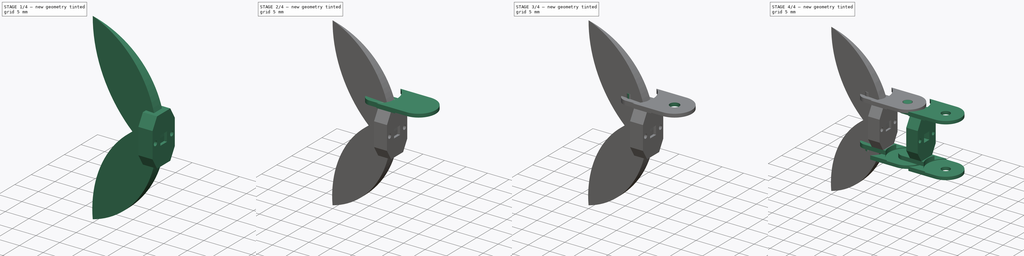
[diagram: build sequence overview — one tinted view per stage of 4, left to right]
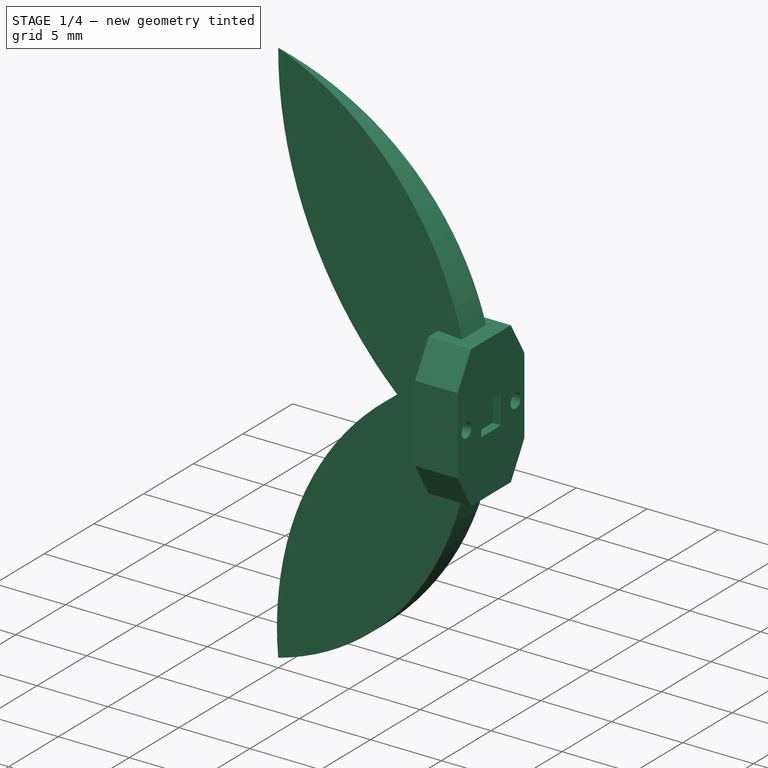
[diagram: stage 1 of 4 — iso view after this stage's code; geometry added in this stage tinted green]
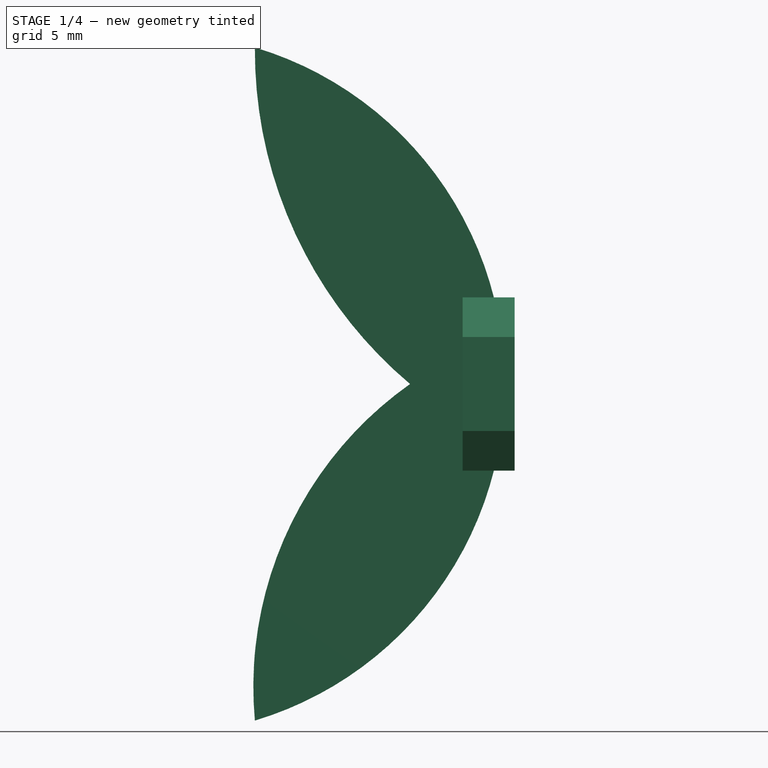
[diagram: stage 1 of 4 — front view after this stage's code; geometry added in this stage tinted green]
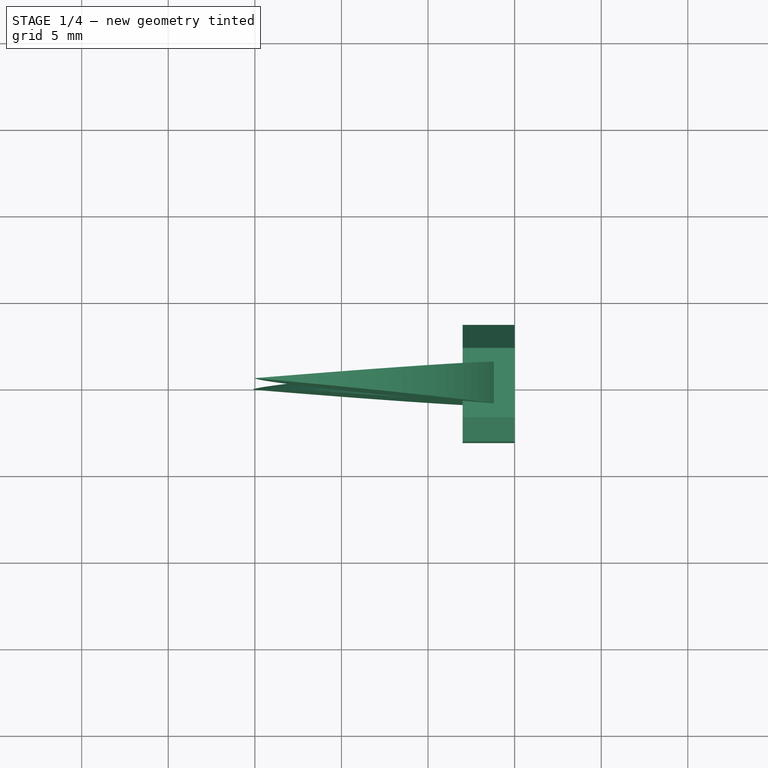
[diagram: stage 1 of 4 — top view after this stage's code; geometry added in this stage tinted green]
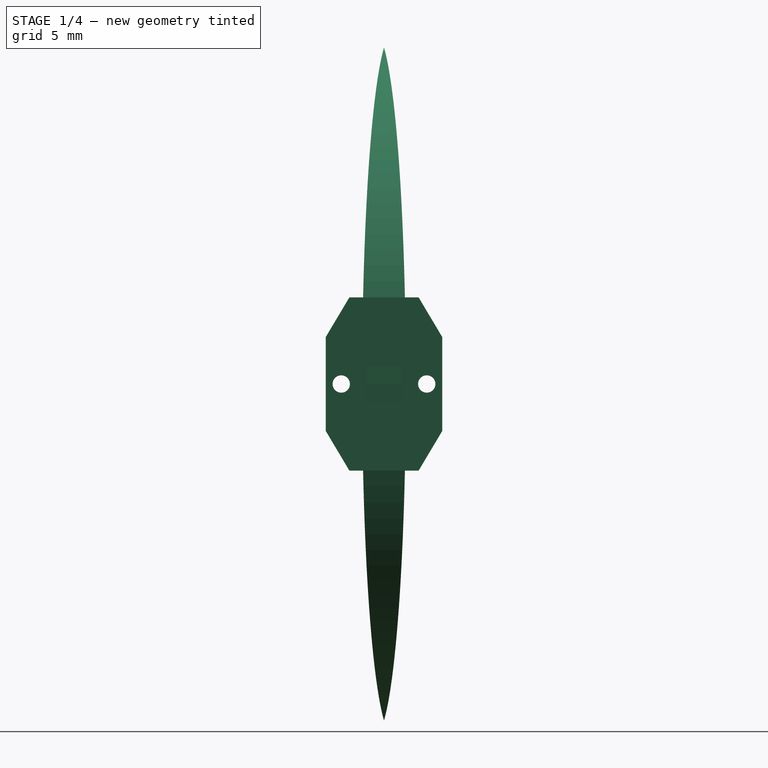
[diagram: stage 1 of 4 — right view after this stage's code; geometry added in this stage tinted green]
FCSTD DOCUMENT  (FreeCAD 0.16RUnknown)
Label: ChainV2
License: All rights reserved
LicenseURL: http://en.wikipedia.org/wiki/All_rights_reserved
objects: Sketcher::SketchObject×8, Part::Extrusion×3, Part::FeaturePython×3, PartDesign::Pad×2, PartDesign::Pocket×2, Spreadsheet::Sheet×1, Part::Mirroring×1, Part::Cut×1, Part::Revolution×1, Part::Fuse×1, App::DocumentObjectGroup×1
note: 26 computed .brp shape members not serialized (recipe doc carries the construction recipe); baked Part::Feature solids carry a one-line shape summary decoded from their .brp

FEATURE [Sketcher::SketchObject] Sketch001  label="big"
  Placement = pos=(0,0,6) rot=(0,0,1;0rad)
  Support = -> Extrude [Face6]
  expr: Constraints[3] = data.Lx / 2
  expr: Constraints[6] = data.Lx / 2
  expr: Constraints[2] = data.Ly / 2
  sketch-geometry (4):
    g0: ArcOfCircle CenterX=5 CenterY=0 CenterZ=0 NormalX=0 NormalY=0 NormalZ=1 Radius=4 StartAngle=4.71238 EndAngle=7.85399
    g1: ArcOfCircle CenterX=-5 CenterY=0 CenterZ=0 NormalX=0 NormalY=0 NormalZ=1 Radius=5 StartAngle=5.35589 EndAngle=7.21048
    g2: LineSegment StartX=-2 StartY=4 StartZ=0 EndX=4.99998 EndY=4 EndZ=0
    g3: LineSegment StartX=-2 StartY=-4 StartZ=0 EndX=4.99998 EndY=-4 EndZ=0
  constraints (14):
    c: PointOnObject(g0,g-1)
    c: Symmetric(g0,g0,g-1)
    c: Radius(g0) = 4
    c: DistanceX(g-1,g0) = 5
    c: PointOnObject(g1,g-1)
    c: Symmetric(g1,g1,g-1)
    c: DistanceX(g1,g-1) = 5
    c: PointOnObject(g-1,g1)
    c: Coincident(g2,g0)
    c: Coincident(g3,g0)
    c: Coincident(g2,g1)
    c: Coincident(g1,g3)
    c: Parallel(g2,g3)
    c: Tangent(g0,g2)
FEATURE [Sketcher::SketchObject] Sketch005  label="inside"
  Placement = pos=(0,0,0) rot=(0.57735,0.57735,0.57735;2.0944rad)
  expr: Constraints[17] = data.ly / 2
  expr: Constraints[13] = data.Lz / 2
  expr: Constraints[12] = data.Lz / 2
  sketch-geometry (8):
    g0: LineSegment StartX=-2 StartY=5 StartZ=0 EndX=2 EndY=5 EndZ=0
    g1: LineSegment StartX=2 StartY=5 StartZ=0 EndX=3.36402 EndY=2.71073 EndZ=0
    g2: LineSegment StartX=3.36402 StartY=2.71073 StartZ=0 EndX=3.36402 EndY=-2.71073 EndZ=0
    g3: LineSegment StartX=3.36402 StartY=-2.71073 StartZ=0 EndX=2 EndY=-5 EndZ=0
    g4: LineSegment StartX=2 StartY=-5 StartZ=0 EndX=-2 EndY=-5 EndZ=0
    g5: LineSegment StartX=-2 StartY=-5 StartZ=0 EndX=-3.36402 EndY=-2.71073 EndZ=0
    g6: LineSegment StartX=-3.36402 StartY=-2.71073 StartZ=0 EndX=-3.36402 EndY=2.71073 EndZ=0
    g7: LineSegment StartX=-3.36402 StartY=2.71073 StartZ=0 EndX=-2 EndY=5 EndZ=0
  constraints (18):
    c: Symmetric(g0,g0,g-2)
    c: Symmetric(g4,g3,g-2)
    c: Coincident(g6,g7)
    c: Coincident(g5,g4)
    c: Coincident(g5,g6)
    c: Coincident(g0,g7)
    c: Coincident(g0,g1)
    c: Coincident(g1,g2)
    c: Coincident(g2,g3)
    c: Coincident(g3,g4)
    c: Symmetric(g5,g2,g-2)
    c: Symmetric(g6,g1,g-2)
    c: DistanceY(g-1,g0) = 5
    c: DistanceY(g3,g-1) = 5
    c: Parallel(g2,g6)
    c: Symmetric(g1,g2,g-1)
    c: Symmetric(g0,g3,g-1)
    c: DistanceX(g-1,g0) = 2
FEATURE [Sketcher::SketchObject] Sketch006  label="controls"
  Placement = pos=(0,0,0) rot=(0.57735,0.57735,0.57735;2.0944rad)
  expr: Constraints[13] = data.wire
  expr: Constraints[11] = data.bone
  expr: Constraints[16] = data.wire
  expr: Constraints[10] = data.bone
  sketch-geometry (6):
    g0: LineSegment StartX=-1 StartY=1 StartZ=0 EndX=1 EndY=1 EndZ=0
    g1: LineSegment StartX=1 StartY=1 StartZ=0 EndX=1 EndY=-1 EndZ=0
    g2: LineSegment StartX=1 StartY=-1 StartZ=0 EndX=-1 EndY=-1 EndZ=0
    g3: LineSegment StartX=-1 StartY=-1 StartZ=0 EndX=-1 EndY=1 EndZ=0
    g4: Circle CenterX=2.46826 CenterY=0 CenterZ=0 NormalX=0 NormalY=0 NormalZ=1 Radius=0.5
    g5: Circle CenterX=-2.46826 CenterY=0 CenterZ=0 NormalX=0 NormalY=0 NormalZ=1 Radius=0.5
  constraints (17):
    c: Coincident(g0,g1)
    c: Coincident(g1,g2)
    c: Coincident(g2,g3)
    c: Coincident(g3,g0)
    c: Horizontal(g0)
    c: Horizontal(g2)
    c: Vertical(g1)
    c: Vertical(g3)
    c: Symmetric(g0,g2,g-1)
    c: Symmetric(g0,g0,g-2)
    c: DistanceX(g0,g0) = 2
    c: DistanceY(g1,g0) = 2
    c: PointOnObject(g4,g-1)
    c: Radius(g4) = 0.5
    c: PointOnObject(g5,g-1)
    c: Symmetric(g5,g4,g-2)
    c: Radius(g5) = 0.5
FEATURE [Part::Extrusion] Extrude001  label="Controls"
  Base = -> Sketch006
  Dir = (10,0,0)
  Placement = pos=(-5,0,0) rot=(0,0,1;0rad)
  Solid = true
  expr: Placement.Base.x = -data.Lx / 2
  expr: Dir.x = data.Lx
FEATURE [Part::Extrusion] Extrude002  label="Inside"
  Base = -> Sketch005
  Dir = (-3,0,0)
  Solid = true
  expr: Dir.x = -data.core
FEATURE [Part::Cut] Cut  label="Core"
  Base = -> Extrude002
  Tool = -> Extrude001
FEATURE [Sketcher::SketchObject] Sketch007  label="TailProfile"
  Placement = pos=(0,0,0) rot=(-1,0,0;4.71239rad)
  sketch-geometry (3):
    g0: ArcOfCircle CenterX=25.164 CenterY=19.282 CenterZ=0 NormalX=0 NormalY=0 NormalZ=1 Radius=25.1645 StartAngle=3.1355 EndAngle=4.01456
    g1: ArcOfCircle CenterX=-5.8005 CenterY=0 CenterZ=0 NormalX=0 NormalY=0 NormalZ=1 Radius=20.2824 StartAngle=5.00243 EndAngle=7.56394
    g2: ArcOfCircle CenterX=21.2945 CenterY=-17.4912 CenterZ=0 NormalX=0 NormalY=0 NormalZ=1 Radius=21.3831 StartAngle=2.18368 EndAngle=3.23263
  constraints (7):
    c: PointOnObject(g1,g-1)
    c: Symmetric(g1,g1,g-1)
    c: PointOnObject(g1,g-2)
    c: Coincident(g1,g0)
    c: PointOnObject(g0,g-1)
    c: Coincident(g2,g0)
    c: Coincident(g2,g1)
FEATURE [Part::Revolution] Revolve
  Angle = 10
  Axis = (0,0,1)
  Base = (0,0,0)
  Placement = pos=(-15,0,0) rot=(0,0,-1;0.087266rad)
  Solid = true
  Source = -> Sketch007
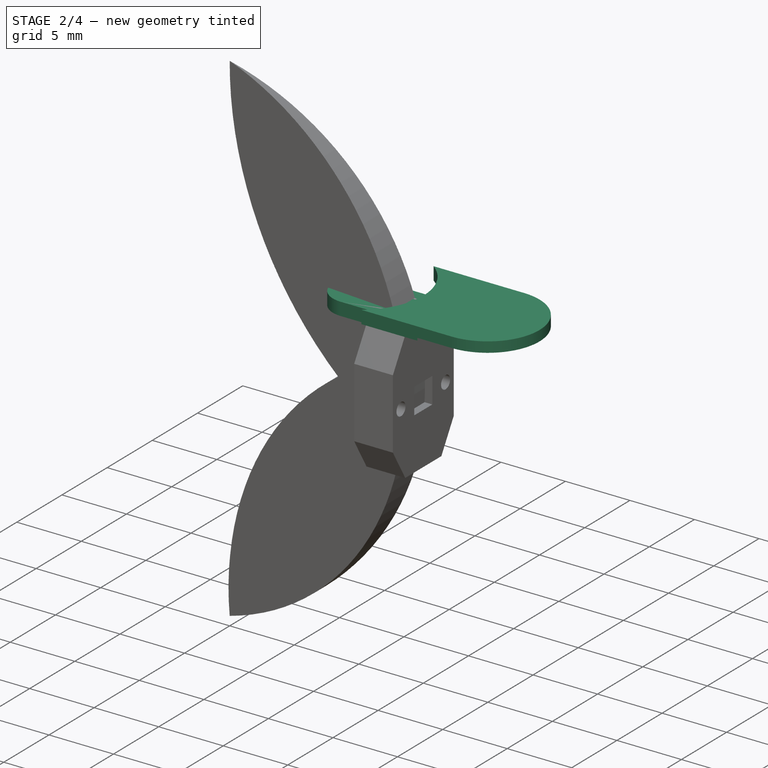
[diagram: stage 2 of 4 — iso view after this stage's code; geometry added in this stage tinted green]
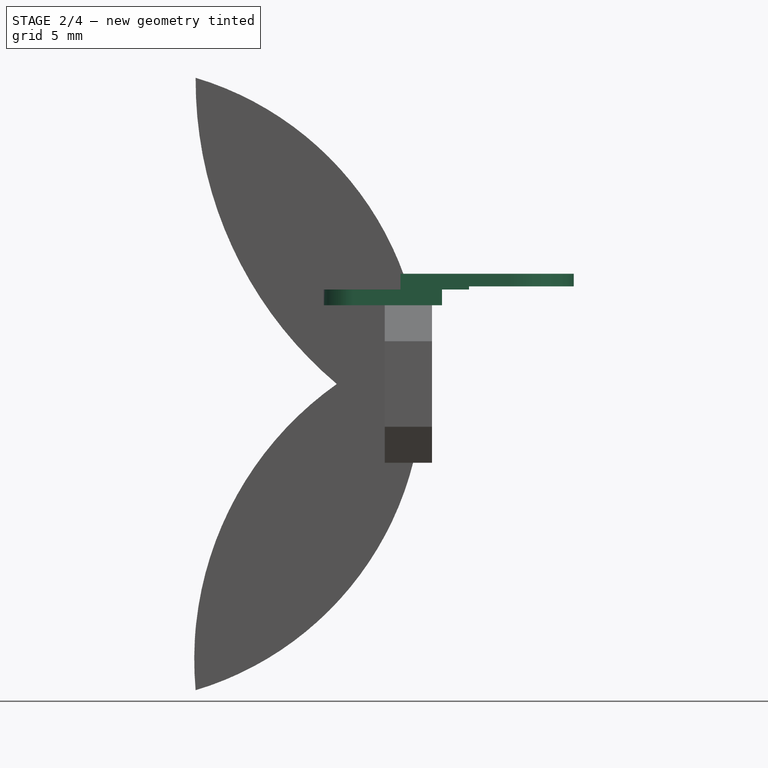
[diagram: stage 2 of 4 — front view after this stage's code; geometry added in this stage tinted green]
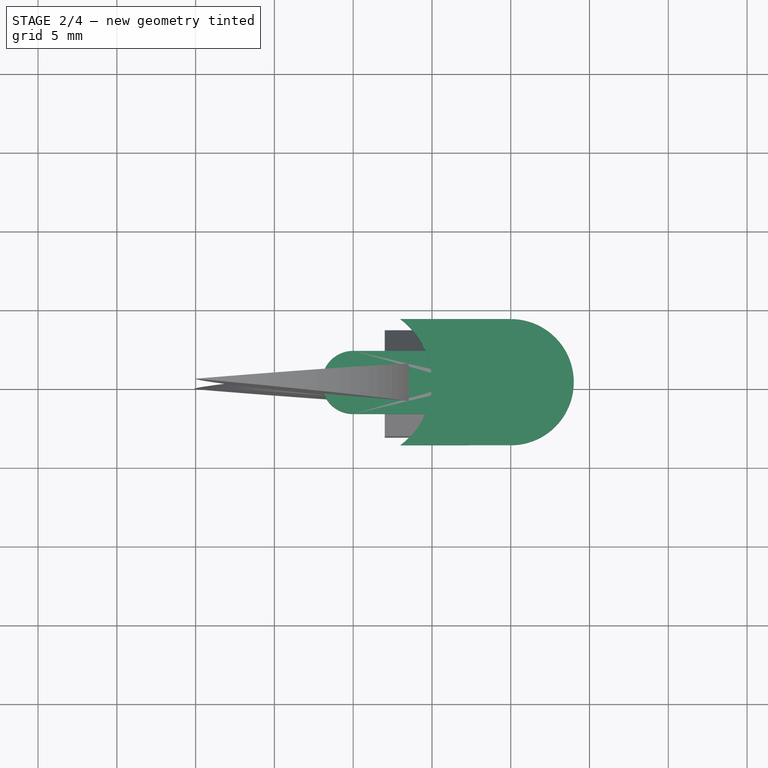
[diagram: stage 2 of 4 — top view after this stage's code; geometry added in this stage tinted green]
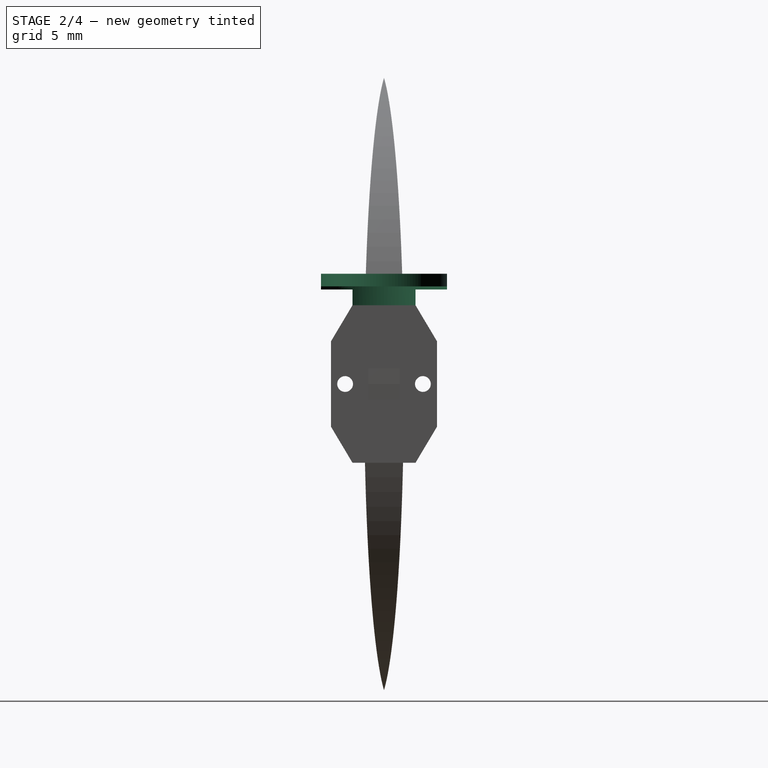
[diagram: stage 2 of 4 — right view after this stage's code; geometry added in this stage tinted green]
FEATURE [Spreadsheet::Sheet] Spreadsheet  label="data"
  cells = E1=Lx; F1(Lx)=10; E2=ly; F2(ly)=4; E3=Ly; F3(Ly)=8; E4=Raxe; F4(Raxe)=1; E5=slack; F5(slack)=0.2; E7=thickness; F7(thickness)=1; E8=Lz; F8(Lz)=10; E10=bone; F10(bone)=2; E11=wire; F11(wire)=0.5; E13=core; F13(core)=3
FEATURE [Sketcher::SketchObject] Sketch  label="small"
  expr: Constraints[2] = data.Lx / 2
  expr: Constraints[3] = data.ly / 2
  sketch-geometry (4):
    g0: ArcOfCircle CenterX=-5 CenterY=0 CenterZ=0 NormalX=0 NormalY=0 NormalZ=1 Radius=2 StartAngle=1.55231 EndAngle=4.73087
    g1: LineSegment StartX=-4.96304 StartY=1.99966 StartZ=0 EndX=1.16994 EndY=1.99966 EndZ=0
    g2: LineSegment StartX=-4.96304 StartY=-1.99966 StartZ=0 EndX=1.16994 EndY=-1.99966 EndZ=0
    g3: LineSegment StartX=1.16994 StartY=1.99966 StartZ=0 EndX=1.16994 EndY=-1.99966 EndZ=0
  constraints (10):
    c: PointOnObject(g0,g-1)
    c: Symmetric(g0,g0,g-1)
    c: DistanceX(g0,g-1) = 5
    c: Radius(g0) = 2
    c: Symmetric(g1,g2,g-1)
    c: Coincident(g1,g0)
    c: Coincident(g2,g0)
    c: Parallel(g1,g2)
    c: Coincident(g1,g3)
    c: Coincident(g2,g3)
FEATURE [Part::Extrusion] Extrude  label="Small"
  Base = -> Sketch
  Dir = (0,0,1)
  Placement = pos=(0,0,5) rot=(0,0,1;0rad)
  Solid = true
  expr: Placement.Base.z = data.Lz / 2
  expr: Placement.Rotation.Axis.z = data.thickness
FEATURE [PartDesign::Pad] Pad  label="Big"
  Length = 1
  Length2 = 100
  Placement = pos=(0,0,5) rot=(0,0,1;0rad)
  Sketch = -> Sketch001
  Type = 0
  expr: Length = data.thickness
FEATURE [Sketcher::SketchObject] Sketch002  label="big_slack"
  Placement = pos=(0,0,5) rot=(1,0,0;3.14159rad)
  Support = -> Pad [Face4]
  expr: Constraints[2] = data.Lx / 2 - data.slack
  expr: Constraints[1] = data.Lx / 2
  sketch-geometry (1):
    g0: Circle CenterX=5 CenterY=0 CenterZ=0 NormalX=0 NormalY=0 NormalZ=1 Radius=4.8
  constraints (3):
    c: PointOnObject(g0,g-1)
    c: DistanceX(g-1,g0) = 5
    c: Radius(g0) = 4.8
FEATURE [PartDesign::Pocket] Pocket  label="BigSlack"
  Length = 1.2
  Placement = pos=(0,0,5) rot=(0,0,1;0rad)
  Sketch = -> Sketch002
  Type = 0
  expr: Length = data.thickness + data.slack
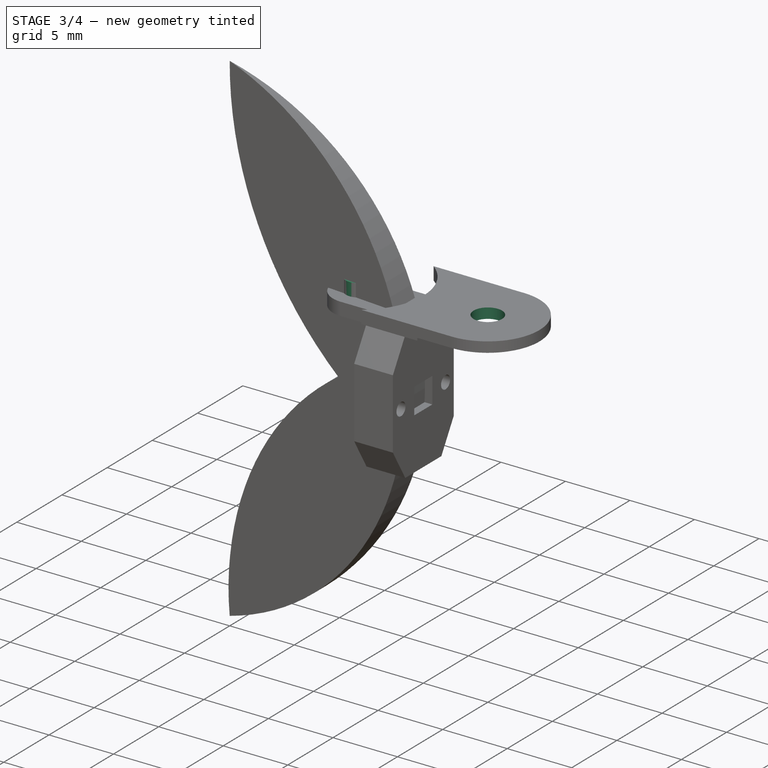
[diagram: stage 3 of 4 — iso view after this stage's code; geometry added in this stage tinted green]
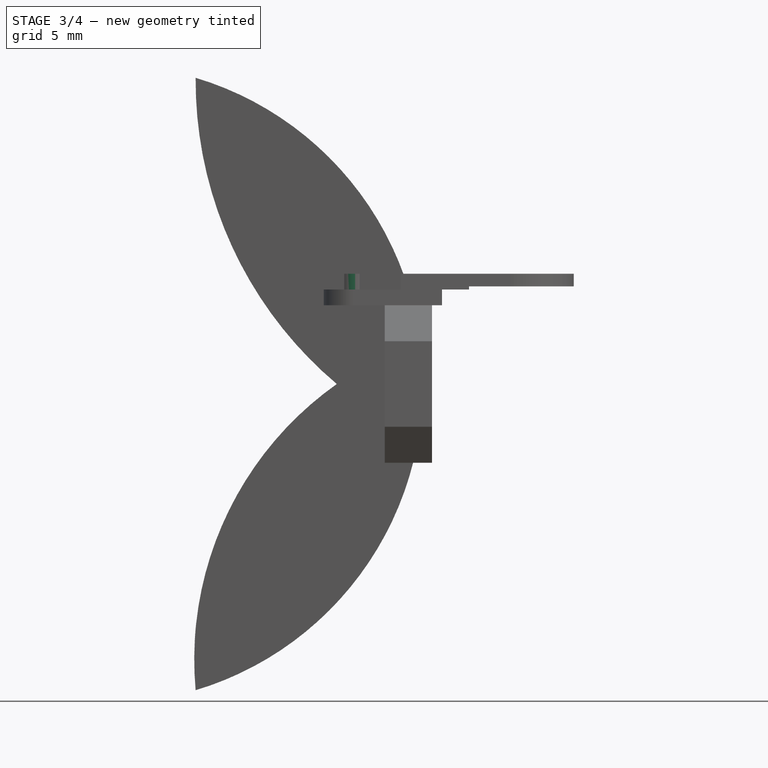
[diagram: stage 3 of 4 — front view after this stage's code; geometry added in this stage tinted green]
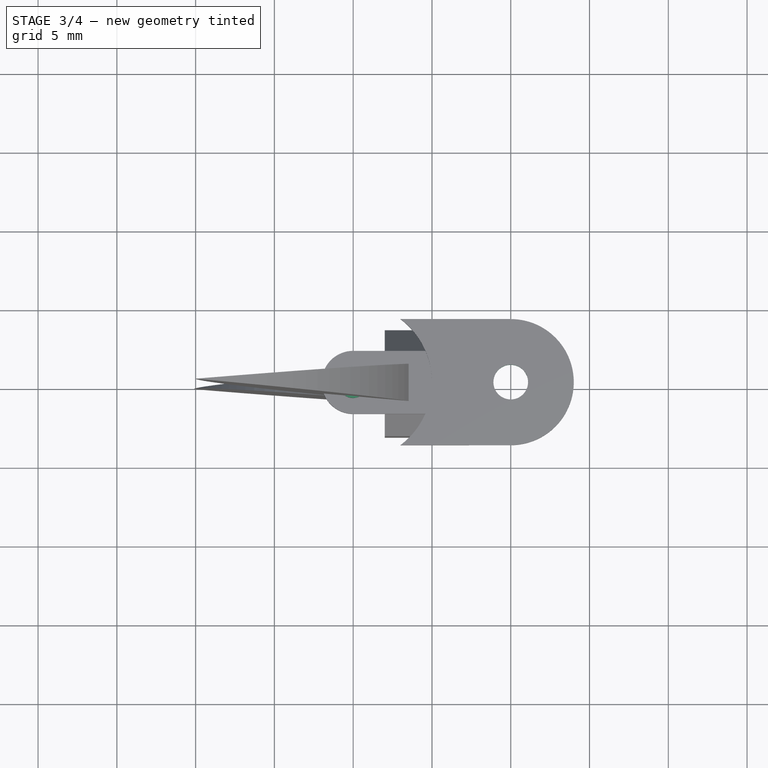
[diagram: stage 3 of 4 — top view after this stage's code; geometry added in this stage tinted green]
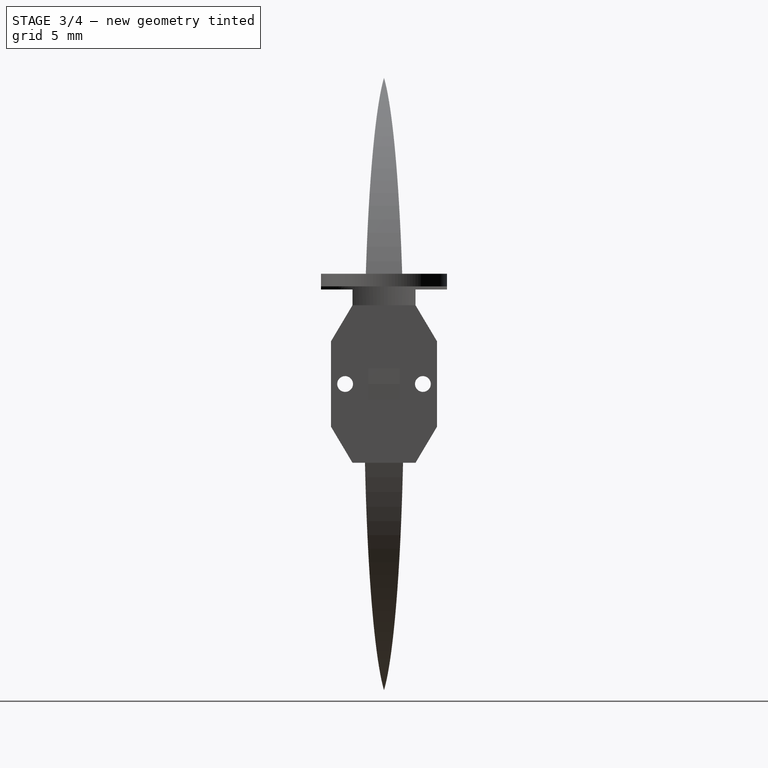
[diagram: stage 3 of 4 — right view after this stage's code; geometry added in this stage tinted green]
FEATURE [Sketcher::SketchObject] Sketch003  label="male"
  Placement = pos=(0,0,6) rot=(0,0,1;0rad)
  Support = -> Pocket [Face5]
  expr: Constraints[2] = data.Lx / 2
  expr: Constraints[0] = data.Raxe
  sketch-geometry (1):
    g0: Circle CenterX=-5 CenterY=0 CenterZ=0 NormalX=0 NormalY=0 NormalZ=1 Radius=1
  constraints (3):
    c: Radius(g0) = 1
    c: PointOnObject(g0,g-1)
    c: DistanceX(g0,g-1) = 5
FEATURE [PartDesign::Pad] Pad001  label="BigSlackMale"
  Length = 1
  Length2 = 100
  Placement = pos=(0,0,5) rot=(0,0,1;0rad)
  Sketch = -> Sketch003
  Type = 0
  expr: Length = data.thickness
FEATURE [Sketcher::SketchObject] Sketch004  label="female"
  Placement = pos=(0,0,7) rot=(0,0,1;0rad)
  Support = -> Pad001 [Face14]
  expr: Constraints[2] = data.Lx / 2
  expr: Constraints[1] = data.Raxe + data.slack / 2
  sketch-geometry (1):
    g0: Circle CenterX=5 CenterY=0 CenterZ=0 NormalX=0 NormalY=0 NormalZ=1 Radius=1.1
  constraints (3):
    c: PointOnObject(g0,g-1)
    c: Radius(g0) = 1.1
    c: DistanceX(g-1,g0) = 5
FEATURE [PartDesign::Pocket] Pocket001  label="Top"
  Length = 0
  Placement = pos=(0,0,5) rot=(0,0,1;0rad)
  Sketch = -> Sketch004
  Type = 2
FEATURE [Part::FeaturePython] Connect  label="ConnectTopCore"  # WARN: FeaturePython — macro-defined, semantics opaque (R4)
  Base = -> Pocket001
  Mode = 1
  Tool = -> Cut
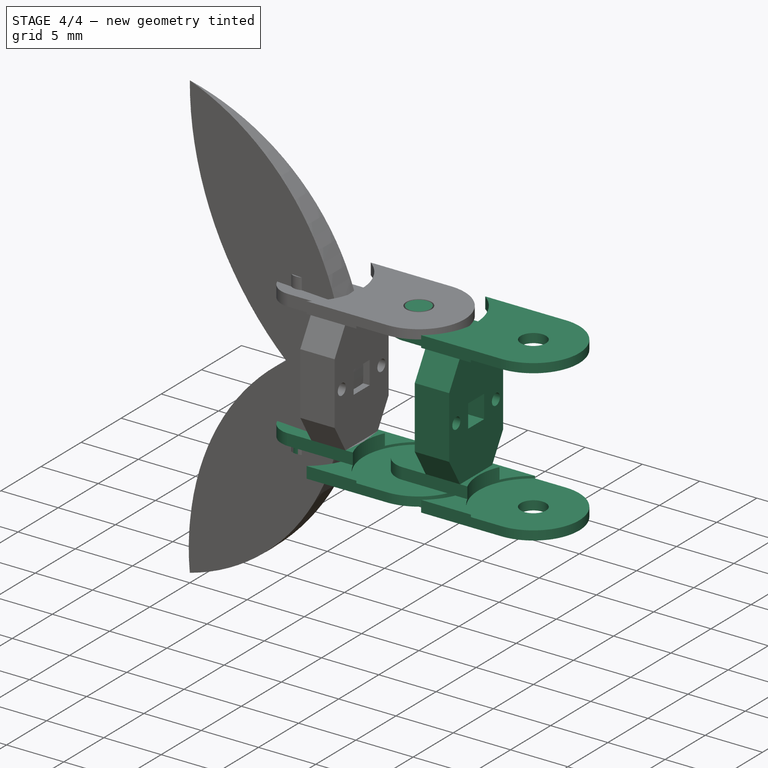
[diagram: stage 4 of 4 — iso view after this stage's code; geometry added in this stage tinted green]
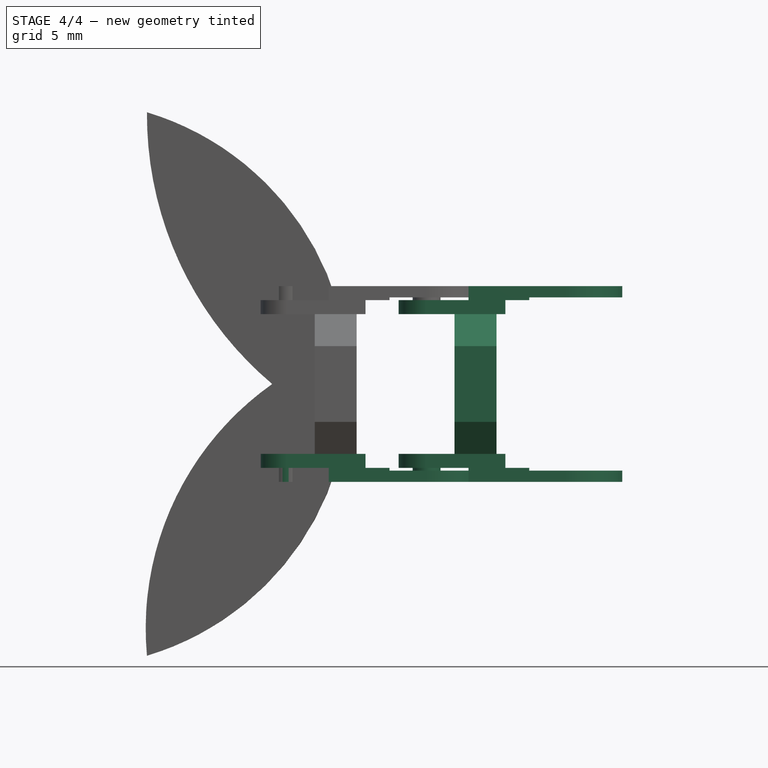
[diagram: stage 4 of 4 — front view after this stage's code; geometry added in this stage tinted green]
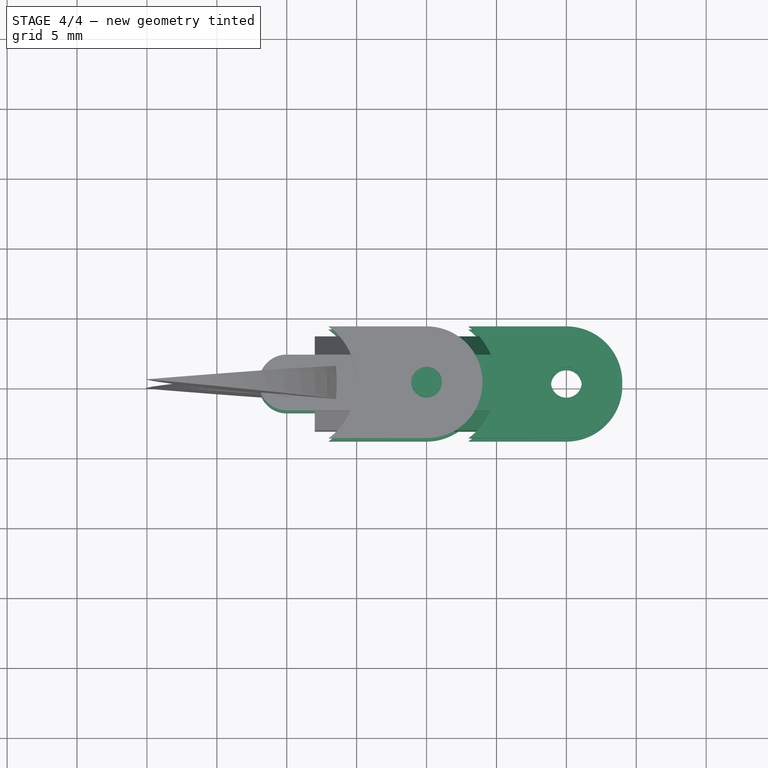
[diagram: stage 4 of 4 — top view after this stage's code; geometry added in this stage tinted green]
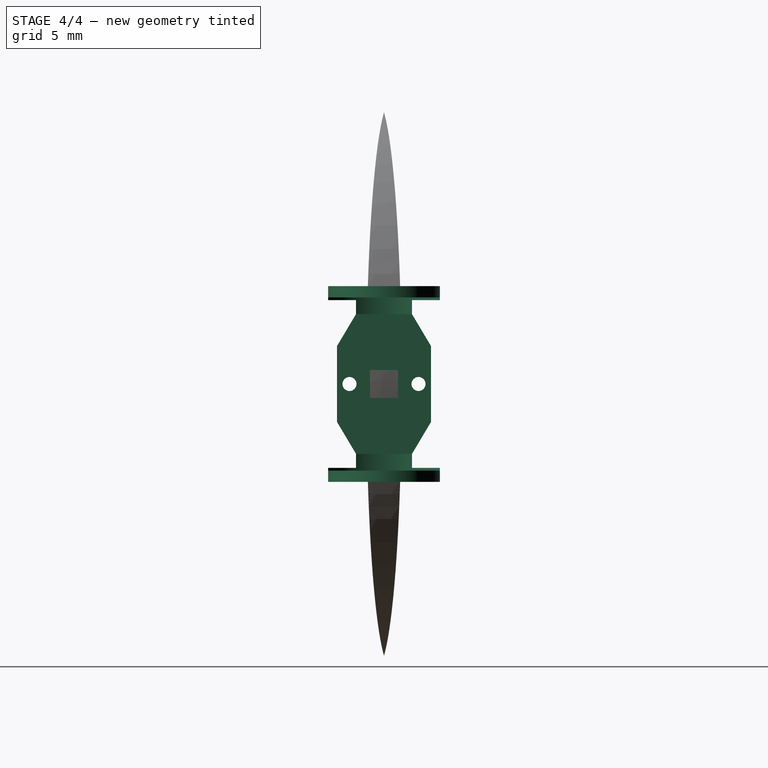
[diagram: stage 4 of 4 — right view after this stage's code; geometry added in this stage tinted green]
FEATURE [Part::Mirroring] Part__Mirroring  label="Outer"
  Base = (0,0,0)
  Normal = (0,0,1)
  Source = -> Pocket001
FEATURE [Part::FeaturePython] Connect001  label="Body"  # WARN: FeaturePython — macro-defined, semantics opaque (R4)
  Base = -> Part__Mirroring
  Mode = 1
  Tool = -> Connect
FEATURE [Part::FeaturePython] Connect002  label="Body001"  # WARN: FeaturePython — macro-defined, semantics opaque (R4)
  Base = -> Part__Mirroring
  Mode = 1
  Placement = pos=(10,0,0) rot=(0,0,1;0rad)
  Tool = -> Connect
  expr: Placement.Base.x = data.Lx
FEATURE [Part::Fuse] Fusion
  Base = -> Connect001
  Tool = -> Revolve
FEATURE [App::DocumentObjectGroup] Group  label="Maillon"
  Group = -> [Extrude,Pad,Pocket,Pad001,Fusion]
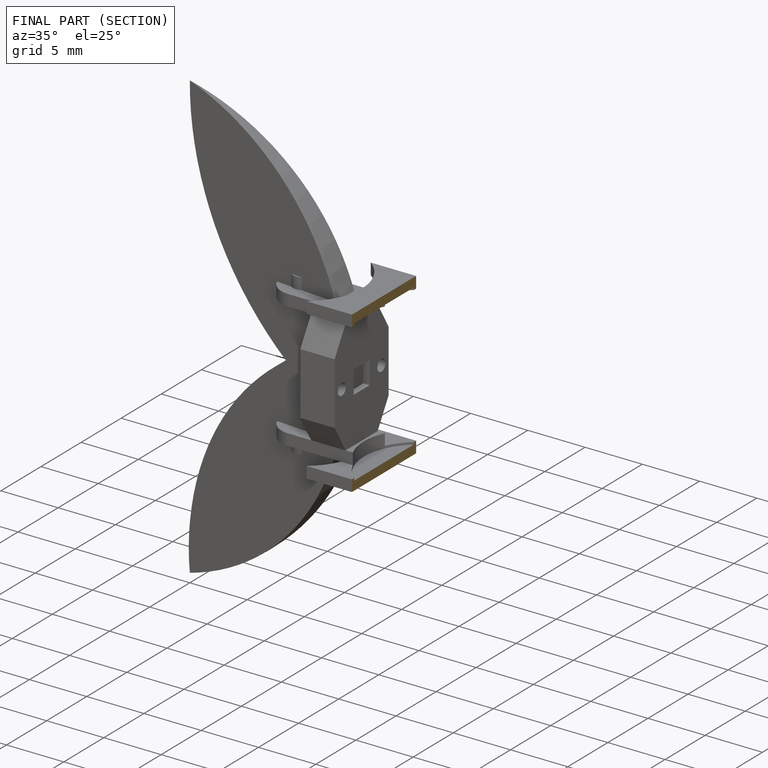
[diagram: finished part — half-section view (interior)]
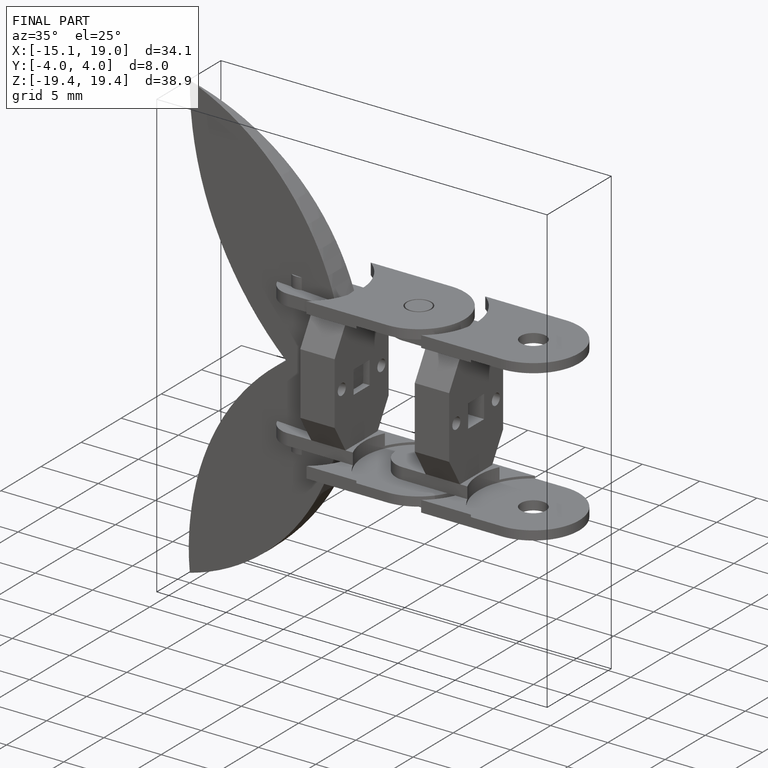
[diagram: finished part — iso view with bounding-box wireframe]
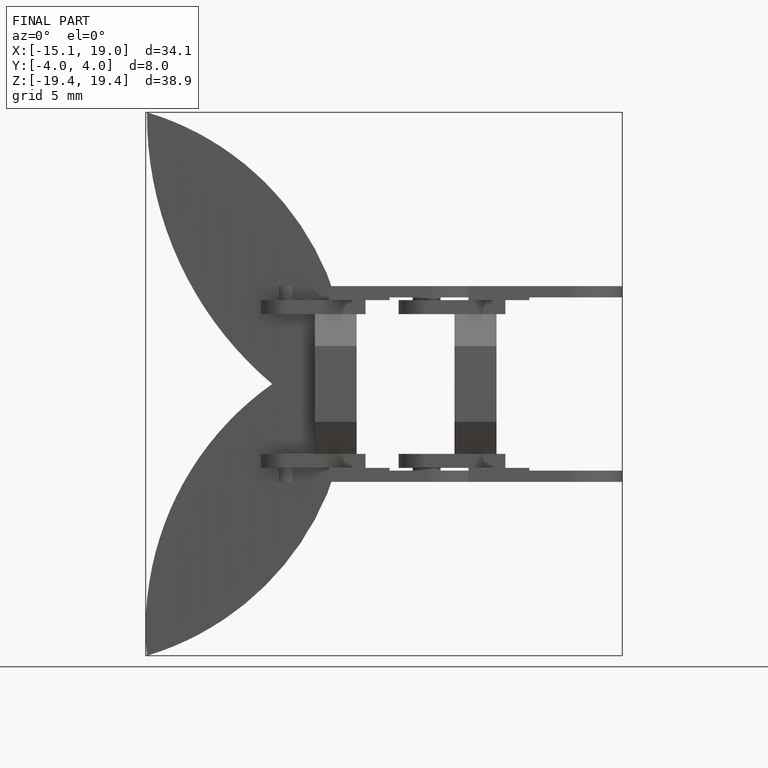
[diagram: finished part — front view with bounding-box wireframe]
